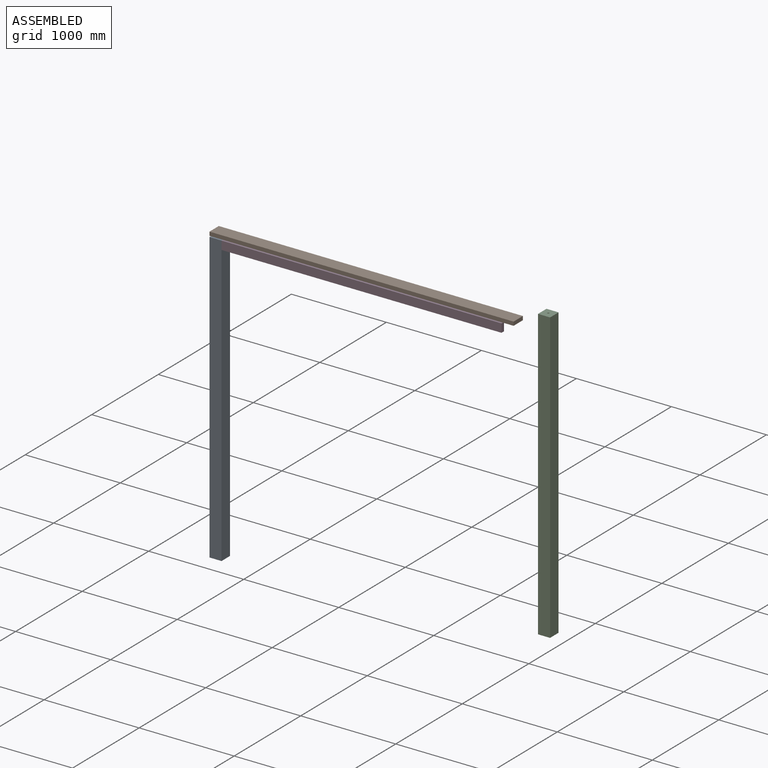
[diagram: assembled view]
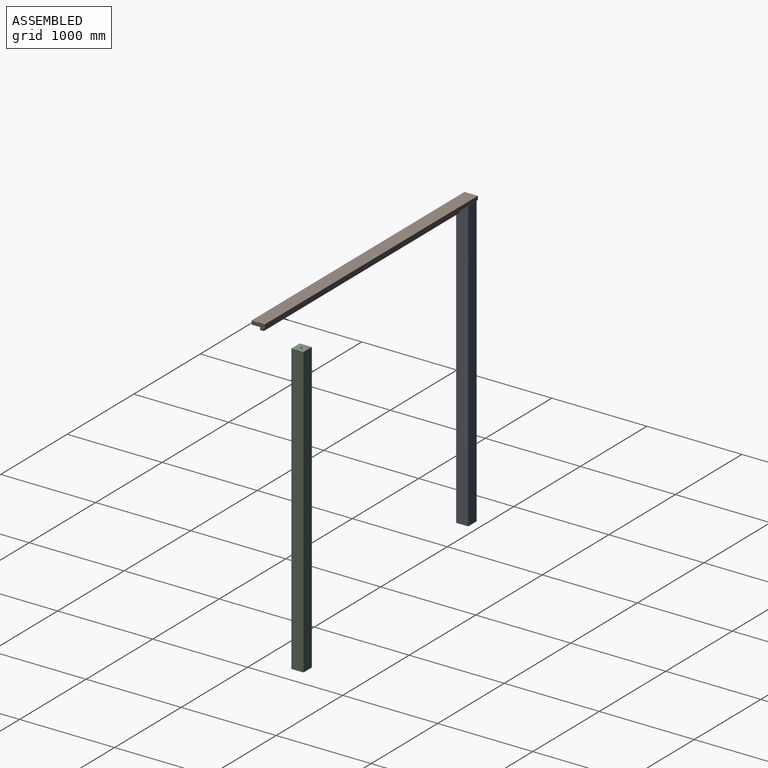
[diagram: assembled view, second angle]
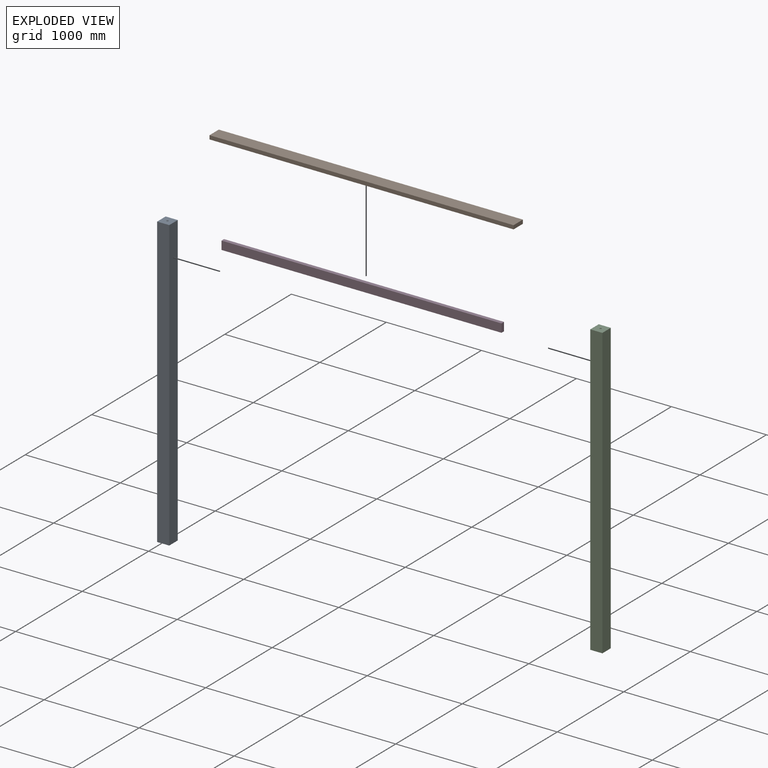
[diagram: exploded view]
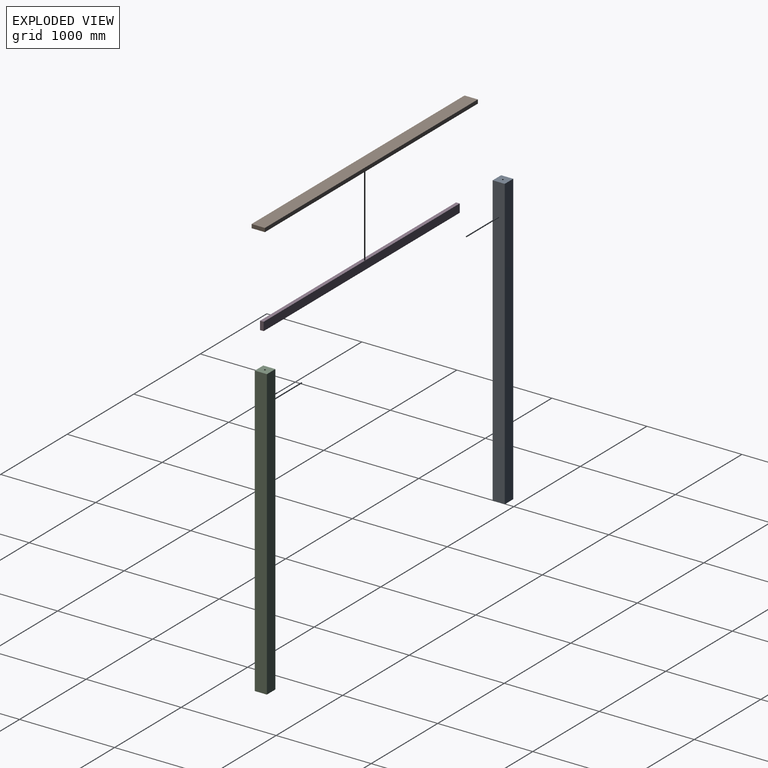
[diagram: exploded view, second angle]
ASSEMBLY  parts=4 mates=2
PART A: 8 faces, bbox 127x127x3048 mm
  f0: plane 3048x127mm, normal (-1,0,0), area 387096mm2, adj f1,f3,f4,f5
  f1: plane 3048x127mm, normal (0,-1,0), area 387096mm2, adj f0,f2,f4,f5
  f2: plane 3048x127mm, normal (1,0,0), area 387096mm2, adj f1,f3,f4,f5
  f3: plane 3048x127mm, normal (0,1,0), area 387096mm2, adj f0,f2,f4,f5
  f4: plane 127x127mm, normal (0,0,1), area 15844mm2, adj f0,f1,f2,f3,f6
  f5: plane 127x127mm, normal (0,0,-1), area 16129mm2, adj f0,f1,f2,f3
  f6: cylinder r=9.53mm len=127mm, axis (0,0,1), area 7600.6mm2, adj f4,f7
  f7: plane 19.05x19.05mm, normal (0,0,1), area 285mm2, adj f6
PART B: 6 faces, bbox 3200.4x140x40 mm
  f0: plane 140x40mm, normal (-1,0,0), area 5600mm2, adj f1,f3,f4,f5
  f1: plane 3200.4x140mm, normal (0,0,-1), area 448056mm2, adj f0,f2,f4,f5
  f2: plane 140x40mm, normal (1,0,0), area 5600mm2, adj f1,f3,f4,f5
  f3: plane 3200.4x140mm, normal (0,0,1), area 448056mm2, adj f0,f2,f4,f5
  f4: plane 3200.4x40mm, normal (0,-1,0), area 128016mm2, adj f0,f1,f2,f3
  f5: plane 3200.4x40mm, normal (0,1,0), area 128016mm2, adj f0,f1,f2,f3
PART C: same geometry as A
PART D: 6 faces, bbox 2946.4x38.1x88.9 mm
  f0: plane 88.9x38.1mm, normal (-1,0,0), area 3387.1mm2, adj f1,f3,f4,f5
  f1: plane 2946.4x38.1mm, normal (0,0,-1), area 112257.8mm2, adj f0,f2,f4,f5
  f2: plane 88.9x38.1mm, normal (1,0,0), area 3387.1mm2, adj f1,f3,f4,f5
  f3: plane 2946.4x38.1mm, normal (0,0,1), area 112257.8mm2, adj f0,f2,f4,f5
  f4: plane 2946.4x88.9mm, normal (0,-1,0), area 261935mm2, adj f0,f1,f2,f3
  f5: plane 2946.4x88.9mm, normal (0,1,0), area 261935mm2, adj f0,f1,f2,f3
PLACE A t=(-1294.34,10.27,-405.01)mm
PLACE B t=(6179.54,92.87,3407.43)mm
PLACE C t=(1839.94,472.01,-474.03)mm
PLACE D t=(24.66,-9.03,2603.68)mm
MATE cylindrical D.f0 <-> A.f2  axis (1,0,0) through (-1200.24,-47.13,2642.99)mm
MATE cylindrical B.f1 <-> A.f4  axis (0,0,-1) through (-1327.24,-47.13,2654.44)mm
